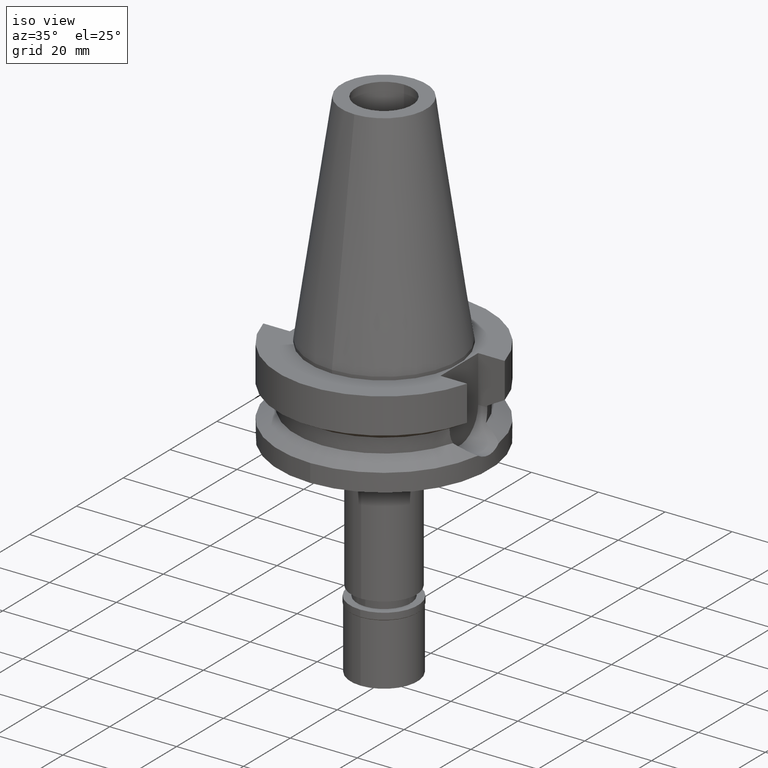
[diagram: clean part render]
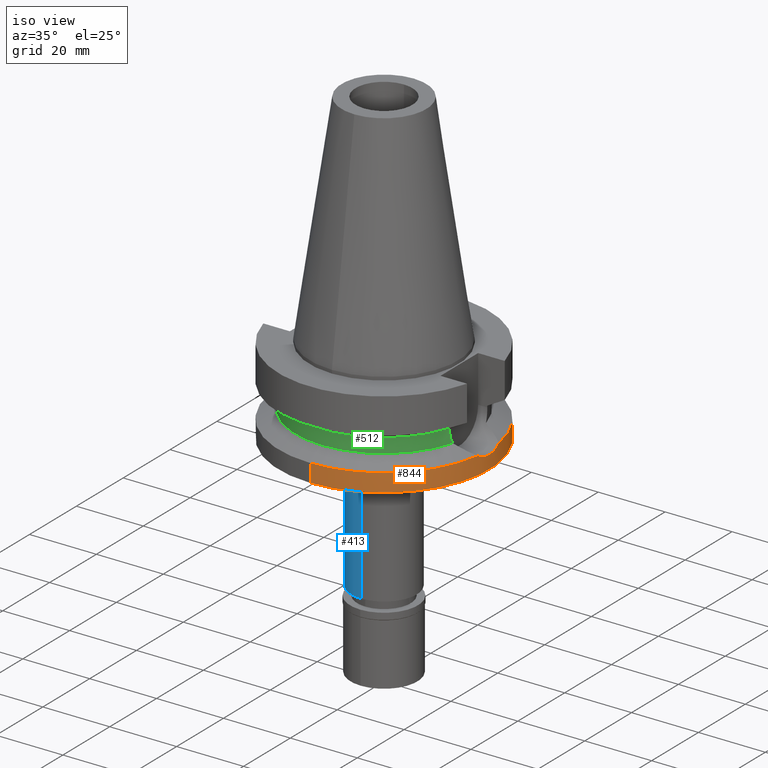
[diagram: same view with three faces highlighted in distinct colors, each labeled with its STEP entity id]
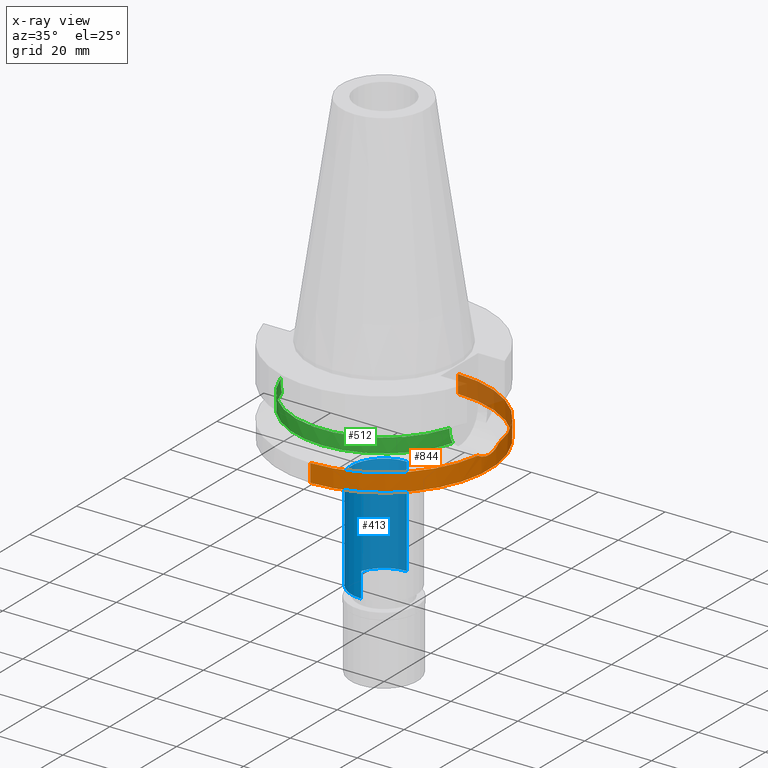
[diagram: x-ray of the same camera — body ghosted, the three highlighted faces saturated]
A machine part, iso view with three faces highlighted in distinct colors.
The next image is the same camera in x-ray (body ghosted, the three faces saturated) — at least one of them is partly hidden behind the body in this view.
Their STEP definitions:

[orange] entity #844 — the highlighted cylindrical surface (partial cylindrical patch) has radius 31.5 mm, axis along (0, 0, -1).
#40 = EDGE_CURVE ( 'NONE', #2755, #1422, #462, .T. ) ;
#56 = EDGE_CURVE ( 'NONE', #2320, #2755, #2675, .T. ) ;
#129 = DIRECTION ( 'NONE',  ( 0.0000000000000000000, 0.0000000000000000000, 1.000000000000000000 ) ) ;
#133 = CARTESIAN_POINT ( 'NONE',  ( 31.39916047242187602, -2.525684878361881047, -22.59611919895438348 ) ) ;
#139 = CARTESIAN_POINT ( 'NONE',  ( 0.0000000000000000000, 31.50000000000000000, -27.00000000000000000 ) ) ;
#147 = LINE ( 'NONE', #432, #2229 ) ;
#209 = ORIENTED_EDGE ( 'NONE', *, *, #738, .F. ) ;
#273 = ORIENTED_EDGE ( 'NONE', *, *, #1031, .T. ) ;
#357 = CARTESIAN_POINT ( 'NONE',  ( 31.34929754643238198, -3.083187843054294941, -22.38882524532109741 ) ) ;
#381 = ORIENTED_EDGE ( 'NONE', *, *, #3004, .T. ) ;
#423 = CARTESIAN_POINT ( 'NONE',  ( 31.50000000000000000, 3.533862756661999907E-11, -23.00000000000000000 ) ) ;
#432 = CARTESIAN_POINT ( 'NONE',  ( 0.0000000000000000000, -31.50000000000000000, -21.63449434733000132 ) ) ;
#462 = CIRCLE ( 'NONE', #1172, 31.50000000000001421 ) ;
#546 = DIRECTION ( 'NONE',  ( 0.0000000000000000000, 1.000000000000000000, 0.0000000000000000000 ) ) ;
#665 = VECTOR ( 'NONE', #1895, 1000.000000000000000 ) ;
#738 = EDGE_CURVE ( 'NONE', #1438, #1385, #2621, .T. ) ;
#739 = VERTEX_POINT ( 'NONE', #1398 ) ;
#760 = DIRECTION ( 'NONE',  ( 0.0000000000000000000, 0.0000000000000000000, -1.000000000000000000 ) ) ;
#796 = CARTESIAN_POINT ( 'NONE',  ( 0.0000000000000000000, 0.0000000000000000000, -21.63449434733000132 ) ) ;
#844 = ADVANCED_FACE ( 'NONE', ( #2655 ), #901, .T. ) ;
#855 = CARTESIAN_POINT ( 'NONE',  ( 31.38347861101858172, -2.713258963322140893, -22.53160019900997924 ) ) ;
#875 = CARTESIAN_POINT ( 'NONE',  ( 31.44157562884893053, -1.955191010136785756, -22.76907076808749153 ) ) ;
#892 = CARTESIAN_POINT ( 'NONE',  ( 31.33092021550847761, -3.264435135790152209, -22.31109383960276560 ) ) ;
#897 = CARTESIAN_POINT ( 'NONE',  ( 0.0000000000000000000, -31.50000000000000000, -21.63449434733000132 ) ) ;
#901 = CYLINDRICAL_SURFACE ( 'NONE', #2742, 31.50000000000000000 ) ;
#905 = CARTESIAN_POINT ( 'NONE',  ( 31.46324907218254197, -1.570849904169943079, -22.85516693584359871 ) ) ;
#917 = DIRECTION ( 'NONE',  ( 0.0000000000000000000, -1.099151708819000049E-13, -1.000000000000000000 ) ) ;
#971 = CIRCLE ( 'NONE', #2692, 31.50000000000000000 ) ;
#1031 = EDGE_CURVE ( 'NONE', #1422, #739, #147, .T. ) ;
#1060 = ORIENTED_EDGE ( 'NONE', *, *, #2323, .T. ) ;
#1069 = CARTESIAN_POINT ( 'NONE',  ( 31.50000000000000000, 3.533862756661999907E-11, -23.00000000000000000 ) ) ;
#1079 = AXIS2_PLACEMENT_3D ( 'NONE', #2284, #129, #3020 ) ;
#1090 = CARTESIAN_POINT ( 'NONE',  ( 31.35693800403845799, 3.093611842503868559, -22.42394393119836593 ) ) ;
#1094 = CARTESIAN_POINT ( 'NONE',  ( 31.22673699976850514, -4.153707455353346845, -21.85716339905673777 ) ) ;
#1110 = CARTESIAN_POINT ( 'NONE',  ( 31.17899877608999759, -4.485536235554000051, -21.63449434733000132 ) ) ;
#1159 = CARTESIAN_POINT ( 'NONE',  ( 0.0000000000000000000, 31.50000000000000000, -21.63449434733000132 ) ) ;
#1172 = AXIS2_PLACEMENT_3D ( 'NONE', #796, #1773, #2753 ) ;
#1286 = CARTESIAN_POINT ( 'NONE',  ( 31.17899877608999759, 4.485536235554000051, -21.63449434733000132 ) ) ;
#1305 = CARTESIAN_POINT ( 'NONE',  ( 31.46967100747524171, 1.577276736169972660, -22.88364154536103356 ) ) ;
#1385 = VERTEX_POINT ( 'NONE', #139 ) ;
#1398 = CARTESIAN_POINT ( 'NONE',  ( 0.0000000000000000000, -31.50000000000000000, -27.00000000000000000 ) ) ;
#1422 = VERTEX_POINT ( 'NONE', #897 ) ;
#1438 = VERTEX_POINT ( 'NONE', #1889 ) ;
#1449 = DIRECTION ( 'NONE',  ( 0.0000000000000000000, -1.000000000000000000, 0.0000000000000000000 ) ) ;
#1714 = B_SPLINE_CURVE_WITH_KNOTS ( 'NONE', 3,
 ( #2575, #2764, #1090, #1305, #1803, #1069 ),
 .UNSPECIFIED., .F., .F.,
 ( 4, 2, 4 ),
 ( 0.0000000000000000000, 0.5000000000000000000, 1.000000000000000000 ),
 .UNSPECIFIED. ) ;
#1715 = EDGE_LOOP ( 'NONE', ( #3043, #273, #3099, #209, #1060, #381, #2778 ) ) ;
#1766 = CARTESIAN_POINT ( 'NONE',  ( 0.0000000000000000000, 0.0000000000000000000, -21.63449434733000132 ) ) ;
#1773 = DIRECTION ( 'NONE',  ( 0.0000000000000000000, 0.0000000000000000000, -1.000000000000000000 ) ) ;
#1803 = CARTESIAN_POINT ( 'NONE',  ( 31.49999999999911182, 0.7894177391603900418, -23.00000000000000355 ) ) ;
#1889 = CARTESIAN_POINT ( 'NONE',  ( 0.0000000000000000000, 31.50000000000000000, -21.63449434733000132 ) ) ;
#1895 = DIRECTION ( 'NONE',  ( 0.0000000000000000000, 1.099151708819000049E-13, -1.000000000000000000 ) ) ;
#2141 = DIRECTION ( 'NONE',  ( 0.0000000000000000000, 0.0000000000000000000, -1.000000000000000000 ) ) ;
#2168 = CARTESIAN_POINT ( 'NONE',  ( 0.0000000000000000000, 0.0000000000000000000, 0.0000000000000000000 ) ) ;
#2229 = VECTOR ( 'NONE', #917, 1000.000000000000000 ) ;
#2231 = CIRCLE ( 'NONE', #1079, 31.50000000000000000 ) ;
#2284 = CARTESIAN_POINT ( 'NONE',  ( 0.0000000000000000000, 0.0000000000000000000, -27.00000000000000000 ) ) ;
#2308 = VERTEX_POINT ( 'NONE', #1286 ) ;
#2320 = VERTEX_POINT ( 'NONE', #2447 ) ;
#2323 = EDGE_CURVE ( 'NONE', #1438, #2308, #971, .T. ) ;
#2337 = CARTESIAN_POINT ( 'NONE',  ( 31.49259283296986567, -0.7875330192452222322, -22.97108977988479595 ) ) ;
#2447 = CARTESIAN_POINT ( 'NONE',  ( 31.50000000000000000, 3.533862756661999907E-11, -23.00000000000000000 ) ) ;
#2575 = CARTESIAN_POINT ( 'NONE',  ( 31.17899877608999759, 4.485536235554000051, -21.63449434733000132 ) ) ;
#2621 = LINE ( 'NONE', #1159, #665 ) ;
#2655 = FACE_OUTER_BOUND ( 'NONE', #1715, .T. ) ;
#2675 = B_SPLINE_CURVE_WITH_KNOTS ( 'NONE', 3,
 ( #423, #2828, #2337, #905, #875, #133, #855, #357, #892, #2818, #1094, #1110 ),
 .UNSPECIFIED., .F., .F.,
 ( 4, 2, 2, 2, 2, 4 ),
 ( 0.0000000000000000000, 0.2499999999999998335, 0.4999999999999996669, 0.6249999999999997780, 0.7499999999999998890, 1.000000000000000000 ),
 .UNSPECIFIED. ) ;
#2692 = AXIS2_PLACEMENT_3D ( 'NONE', #1766, #760, #546 ) ;
#2742 = AXIS2_PLACEMENT_3D ( 'NONE', #2168, #2141, #1449 ) ;
#2753 = DIRECTION ( 'NONE',  ( 0.9898094849552905306, -0.1423979757318985240, 0.0000000000000000000 ) ) ;
#2755 = VERTEX_POINT ( 'NONE', #2974 ) ;
#2764 = CARTESIAN_POINT ( 'NONE',  ( 31.27447205692612187, 3.821900685652858787, -22.07981768094219888 ) ) ;
#2778 = ORIENTED_EDGE ( 'NONE', *, *, #56, .T. ) ;
#2818 = CARTESIAN_POINT ( 'NONE',  ( 31.27122531427782448, -3.806948984295256189, -22.05414690359077312 ) ) ;
#2828 = CARTESIAN_POINT ( 'NONE',  ( 31.50000000000044409, -0.3946959783217424134, -22.99999999999999289 ) ) ;
#2974 = CARTESIAN_POINT ( 'NONE',  ( 31.17899877608999759, -4.485536235554000051, -21.63449434733000132 ) ) ;
#3004 = EDGE_CURVE ( 'NONE', #2308, #2320, #1714, .T. ) ;
#3020 = DIRECTION ( 'NONE',  ( 0.0000000000000000000, -1.000000000000000000, 0.0000000000000000000 ) ) ;
#3027 = EDGE_CURVE ( 'NONE', #739, #1385, #2231, .T. ) ;
#3043 = ORIENTED_EDGE ( 'NONE', *, *, #40, .T. ) ;
#3099 = ORIENTED_EDGE ( 'NONE', *, *, #3027, .T. ) ;

[blue] entity #413 — the highlighted cylindrical surface (partial cylindrical patch) has radius 9.75 mm, axis along (0, 0, -1).
#150 = EDGE_CURVE ( 'NONE', #3072, #806, #2289, .T. ) ;
#211 = CARTESIAN_POINT ( 'NONE',  ( 0.0000000000000000000, 0.0000000000000000000, -37.00000000000000000 ) ) ;
#337 = DIRECTION ( 'NONE',  ( 0.0000000000000000000, -1.000000000000000000, 0.0000000000000000000 ) ) ;
#413 = ADVANCED_FACE ( 'NONE', ( #790 ), #2248, .T. ) ;
#476 = VERTEX_POINT ( 'NONE', #2683 ) ;
#517 = VECTOR ( 'NONE', #864, 1000.000000000000000 ) ;
#619 = LINE ( 'NONE', #1796, #517 ) ;
#634 = ORIENTED_EDGE ( 'NONE', *, *, #1512, .T. ) ;
#635 = ORIENTED_EDGE ( 'NONE', *, *, #1266, .T. ) ;
#790 = FACE_OUTER_BOUND ( 'NONE', #1879, .T. ) ;
#806 = VERTEX_POINT ( 'NONE', #2119 ) ;
#841 = DIRECTION ( 'NONE',  ( 0.0000000000000000000, 0.0000000000000000000, -1.000000000000000000 ) ) ;
#853 = AXIS2_PLACEMENT_3D ( 'NONE', #1333, #2758, #2726 ) ;
#864 = DIRECTION ( 'NONE',  ( 0.0000000000000000000, 0.0000000000000000000, -1.000000000000000000 ) ) ;
#866 = DIRECTION ( 'NONE',  ( 0.0000000000000000000, 0.0000000000000000000, -1.000000000000000000 ) ) ;
#1007 = ORIENTED_EDGE ( 'NONE', *, *, #1978, .F. ) ;
#1155 = DIRECTION ( 'NONE',  ( 0.0000000000000000000, -1.000000000000000000, 0.0000000000000000000 ) ) ;
#1266 = EDGE_CURVE ( 'NONE', #806, #476, #2121, .T. ) ;
#1275 = DIRECTION ( 'NONE',  ( 0.0000000000000000000, 0.0000000000000000000, -1.000000000000000000 ) ) ;
#1318 = AXIS2_PLACEMENT_3D ( 'NONE', #2450, #1275, #337 ) ;
#1333 = CARTESIAN_POINT ( 'NONE',  ( 0.0000000000000000000, 0.0000000000000000000, -66.60000000000000853 ) ) ;
#1381 = CARTESIAN_POINT ( 'NONE',  ( 0.0000000000000000000, -9.750000000000000000, -37.00000000000000000 ) ) ;
#1451 = CARTESIAN_POINT ( 'NONE',  ( 0.0000000000000000000, 9.750000000000000000, -37.00000000000000000 ) ) ;
#1512 = EDGE_CURVE ( 'NONE', #1762, #3072, #2020, .T. ) ;
#1762 = VERTEX_POINT ( 'NONE', #1381 ) ;
#1796 = CARTESIAN_POINT ( 'NONE',  ( 0.0000000000000000000, -9.750000000000000000, -37.00000000000000000 ) ) ;
#1879 = EDGE_LOOP ( 'NONE', ( #635, #1007, #634, #2261 ) ) ;
#1978 = EDGE_CURVE ( 'NONE', #1762, #476, #619, .T. ) ;
#2020 = CIRCLE ( 'NONE', #2173, 9.750000000000000000 ) ;
#2100 = CARTESIAN_POINT ( 'NONE',  ( 0.0000000000000000000, 9.750000000000000000, -37.00000000000000000 ) ) ;
#2119 = CARTESIAN_POINT ( 'NONE',  ( 0.0000000000000000000, 9.750000000000000000, -66.60000000000000853 ) ) ;
#2121 = CIRCLE ( 'NONE', #853, 9.750000000000000000 ) ;
#2173 = AXIS2_PLACEMENT_3D ( 'NONE', #211, #866, #1155 ) ;
#2248 = CYLINDRICAL_SURFACE ( 'NONE', #1318, 9.750000000000000000 ) ;
#2261 = ORIENTED_EDGE ( 'NONE', *, *, #150, .T. ) ;
#2289 = LINE ( 'NONE', #2100, #2989 ) ;
#2450 = CARTESIAN_POINT ( 'NONE',  ( 0.0000000000000000000, 0.0000000000000000000, 0.0000000000000000000 ) ) ;
#2683 = CARTESIAN_POINT ( 'NONE',  ( 0.0000000000000000000, -9.750000000000000000, -66.60000000000000853 ) ) ;
#2726 = DIRECTION ( 'NONE',  ( 0.0000000000000000000, 1.000000000000000000, 0.0000000000000000000 ) ) ;
#2758 = DIRECTION ( 'NONE',  ( 0.0000000000000000000, 0.0000000000000000000, 1.000000000000000000 ) ) ;
#2989 = VECTOR ( 'NONE', #841, 1000.000000000000000 ) ;
#3072 = VERTEX_POINT ( 'NONE', #1451 ) ;

[green] entity #512 — the highlighted cylindrical surface (partial cylindrical patch) has radius 26.5 mm, axis along (0, 0, -1).
#42 = VERTEX_POINT ( 'NONE', #568 ) ;
#90 = CARTESIAN_POINT ( 'NONE',  ( 25.30212919435223640, -7.877667573970346560, -16.61042047323940452 ) ) ;
#94 = CYLINDRICAL_SURFACE ( 'NONE', #1631, 26.50000000000000000 ) ;
#124 = CARTESIAN_POINT ( 'NONE',  ( 25.53175183775000079, -7.097862220092999941, -18.74774300138999905 ) ) ;
#152 = DIRECTION ( 'NONE',  ( 0.9527442516822307583, -0.3037735849057093818, 0.0000000000000000000 ) ) ;
#195 = CARTESIAN_POINT ( 'NONE',  ( -25.37573308857943744, -7.637710303739495110, -17.49818662950806569 ) ) ;
#243 = CARTESIAN_POINT ( 'NONE',  ( -25.33293017119234847, -7.777974374871667429, -17.02562462713745361 ) ) ;
#264 = CARTESIAN_POINT ( 'NONE',  ( 25.53175183775000079, -7.097862220092999941, -18.74774300138999905 ) ) ;
#284 = DIRECTION ( 'NONE',  ( 0.0000000000000000000, 0.0000000000000000000, -1.000000000000000000 ) ) ;
#349 = CARTESIAN_POINT ( 'NONE',  ( 25.27268336911708602, -7.971811480182260823, -16.08115959834934827 ) ) ;
#455 = CARTESIAN_POINT ( 'NONE',  ( -25.24772266957999634, -8.049999999999997158, -15.58999736273356085 ) ) ;
#489 = CARTESIAN_POINT ( 'NONE',  ( 25.24772266958000344, -8.050000000000000711, -14.45225699861000024 ) ) ;
#493 = CARTESIAN_POINT ( 'NONE',  ( -25.44392837589918699, -7.408239565059870024, -18.11709494172737323 ) ) ;
#512 = ADVANCED_FACE ( 'NONE', ( #1784 ), #94, .T. ) ;
#515 = LINE ( 'NONE', #1985, #720 ) ;
#561 = DIRECTION ( 'NONE',  ( 0.0000000000000000000, -1.000000000000000000, 0.0000000000000000000 ) ) ;
#568 = CARTESIAN_POINT ( 'NONE',  ( -25.53175183775000079, -7.097862220092999941, -18.74774300138999905 ) ) ;
#667 = CIRCLE ( 'NONE', #2278, 26.50000000000000711 ) ;
#681 = CARTESIAN_POINT ( 'NONE',  ( -25.24772266958000344, -8.050000000000000711, -14.94999999999999929 ) ) ;
#720 = VECTOR ( 'NONE', #2923, 1000.000000000000000 ) ;
#785 = DIRECTION ( 'NONE',  ( 0.0000000000000000000, 0.0000000000000000000, 1.000000000000000000 ) ) ;
#793 = ORIENTED_EDGE ( 'NONE', *, *, #1618, .F. ) ;
#795 = B_SPLINE_CURVE_WITH_KNOTS ( 'NONE', 3,
 ( #2355, #1439, #493, #1456, #195, #2406, #2597, #243, #907, #2113, #2419, #2849, #455, #681 ),
 .UNSPECIFIED., .F., .F.,
 ( 4, 2, 2, 1, 1, 2, 2, 4 ),
 ( 0.0000000000000000000, 0.2499999999999754641, 0.3749999999999630851, 0.4374999999999556466, 0.4687499999999517608, 0.4843749999999512057, 0.4999999999999505951, 1.000000000000000000 ),
 .UNSPECIFIED. ) ;
#802 = CARTESIAN_POINT ( 'NONE',  ( 25.36814761471072188, -7.663830712965397751, -17.48803584493440155 ) ) ;
#827 = ORIENTED_EDGE ( 'NONE', *, *, #2663, .T. ) ;
#907 = CARTESIAN_POINT ( 'NONE',  ( -25.32844777903620681, -7.792527725354048584, -16.96974754110885897 ) ) ;
#1042 = VERTEX_POINT ( 'NONE', #3038 ) ;
#1049 = CARTESIAN_POINT ( 'NONE',  ( 25.31648647172268340, -7.831300037042765894, -16.81378020971402876 ) ) ;
#1055 = CARTESIAN_POINT ( 'NONE',  ( -25.24772266958000344, -8.050000000000000711, -14.94999999999999929 ) ) ;
#1102 = CARTESIAN_POINT ( 'NONE',  ( 25.24772266958000699, -8.050000000000002487, -15.26991324108734283 ) ) ;
#1273 = AXIS2_PLACEMENT_3D ( 'NONE', #1460, #785, #1705 ) ;
#1299 = CARTESIAN_POINT ( 'NONE',  ( 25.31950905643224914, -7.821515286679936452, -16.85442525727312102 ) ) ;
#1312 = LINE ( 'NONE', #2072, #2081 ) ;
#1314 = CARTESIAN_POINT ( 'NONE',  ( 25.43786330456364908, -7.435589081429985647, -18.11654211998960307 ) ) ;
#1348 = CARTESIAN_POINT ( 'NONE',  ( 0.0000000000000000000, 0.0000000000000000000, -14.45225699861000024 ) ) ;
#1439 = CARTESIAN_POINT ( 'NONE',  ( -25.48482038766597313, -7.266679548433788050, -18.43222872448825100 ) ) ;
#1445 = CARTESIAN_POINT ( 'NONE',  ( 25.24772266958000344, -8.050000000000000711, -14.94999999999999929 ) ) ;
#1456 = CARTESIAN_POINT ( 'NONE',  ( -25.39164951572487894, -7.584807667336962211, -17.65197957159464082 ) ) ;
#1460 = CARTESIAN_POINT ( 'NONE',  ( 0.0000000000000000000, 0.0000000000000000000, -18.74774300138999905 ) ) ;
#1542 = CARTESIAN_POINT ( 'NONE',  ( 0.0000000000000000000, 0.0000000000000000000, 0.0000000000000000000 ) ) ;
#1618 = EDGE_CURVE ( 'NONE', #2216, #2408, #1683, .T. ) ;
#1631 = AXIS2_PLACEMENT_3D ( 'NONE', #1542, #284, #561 ) ;
#1683 = B_SPLINE_CURVE_WITH_KNOTS ( 'NONE', 3,
 ( #2791, #1102, #2246, #349, #2996, #2257, #90, #2504, #1049, #1299, #2537, #802, #1314, #124 ),
 .UNSPECIFIED., .F., .F.,
 ( 4, 2, 2, 1, 1, 2, 2, 4 ),
 ( 0.0000000000000000000, 0.2499999999999894529, 0.3749999999999841238, 0.4374999999999827360, 0.4687499999999818479, 0.4843749999999814038, 0.4999999999999809042, 1.000000000000000000 ),
 .UNSPECIFIED. ) ;
#1705 = DIRECTION ( 'NONE',  ( 0.0000000000000000000, -1.000000000000000000, 0.0000000000000000000 ) ) ;
#1784 = FACE_OUTER_BOUND ( 'NONE', #2370, .T. ) ;
#1832 = CIRCLE ( 'NONE', #1273, 26.50000000000000000 ) ;
#1866 = EDGE_CURVE ( 'NONE', #42, #2408, #1832, .T. ) ;
#1985 = CARTESIAN_POINT ( 'NONE',  ( 25.24772216499999899, -8.050001582554001445, -14.45224490650999805 ) ) ;
#2057 = EDGE_CURVE ( 'NONE', #2976, #1042, #1312, .T. ) ;
#2072 = CARTESIAN_POINT ( 'NONE',  ( -25.24772266958000344, -8.050000000000000711, -14.94999999999999929 ) ) ;
#2081 = VECTOR ( 'NONE', #2757, 1000.000000000000227 ) ;
#2113 = CARTESIAN_POINT ( 'NONE',  ( -25.32550670071060850, -7.802071535306276395, -16.93256103013005287 ) ) ;
#2172 = ORIENTED_EDGE ( 'NONE', *, *, #1866, .T. ) ;
#2216 = VERTEX_POINT ( 'NONE', #1445 ) ;
#2222 = ORIENTED_EDGE ( 'NONE', *, *, #2348, .F. ) ;
#2246 = CARTESIAN_POINT ( 'NONE',  ( 25.25396284446426876, -8.030907492774099765, -15.59360398733918451 ) ) ;
#2257 = CARTESIAN_POINT ( 'NONE',  ( 25.29452398121202350, -7.902090651792936349, -16.48828405102941375 ) ) ;
#2278 = AXIS2_PLACEMENT_3D ( 'NONE', #1348, #2309, #152 ) ;
#2309 = DIRECTION ( 'NONE',  ( 0.0000000000000000000, 0.0000000000000000000, -1.000000000000000000 ) ) ;
#2348 = EDGE_CURVE ( 'NONE', #3088, #2216, #515, .T. ) ;
#2355 = CARTESIAN_POINT ( 'NONE',  ( -25.53175183775000079, -7.097862220092999941, -18.74774300138999905 ) ) ;
#2370 = EDGE_LOOP ( 'NONE', ( #2645, #2172, #793, #2222, #827, #2684 ) ) ;
#2406 = CARTESIAN_POINT ( 'NONE',  ( -25.35412323723021899, -7.708830947932256983, -17.27007949472962167 ) ) ;
#2408 = VERTEX_POINT ( 'NONE', #264 ) ;
#2419 = CARTESIAN_POINT ( 'NONE',  ( -25.32419709970849198, -7.806318959900148791, -16.91578803901756345 ) ) ;
#2504 = CARTESIAN_POINT ( 'NONE',  ( 25.31202572170775156, -7.845729406580137066, -16.75279821057739937 ) ) ;
#2537 = CARTESIAN_POINT ( 'NONE',  ( 25.32118155423751205, -7.816096717212928091, -16.87652453452369627 ) ) ;
#2597 = CARTESIAN_POINT ( 'NONE',  ( -25.34388450889786526, -7.742333382928201502, -17.15666984720025923 ) ) ;
#2645 = ORIENTED_EDGE ( 'NONE', *, *, #2702, .F. ) ;
#2663 = EDGE_CURVE ( 'NONE', #3088, #1042, #667, .T. ) ;
#2684 = ORIENTED_EDGE ( 'NONE', *, *, #2057, .F. ) ;
#2702 = EDGE_CURVE ( 'NONE', #42, #2976, #795, .T. ) ;
#2757 = DIRECTION ( 'NONE',  ( -2.939192562577975552E-06, 9.218380803606921598E-06, 0.9999999999531912209 ) ) ;
#2791 = CARTESIAN_POINT ( 'NONE',  ( 25.24772266958000344, -8.050000000000000711, -14.94999999999999929 ) ) ;
#2849 = CARTESIAN_POINT ( 'NONE',  ( -25.27269391207093463, -7.973288729732005642, -16.24537813257536811 ) ) ;
#2923 = DIRECTION ( 'NONE',  ( 1.013715580283031938E-06, 3.179381940134100273E-06, -0.9999999999944320095 ) ) ;
#2976 = VERTEX_POINT ( 'NONE', #1055 ) ;
#2996 = CARTESIAN_POINT ( 'NONE',  ( 25.28048358772242210, -7.947040743794927309, -16.24400980664070460 ) ) ;
#3038 = CARTESIAN_POINT ( 'NONE',  ( -25.24772413243999836, -8.049995411938999368, -14.45229205738999845 ) ) ;
#3088 = VERTEX_POINT ( 'NONE', #489 ) ;